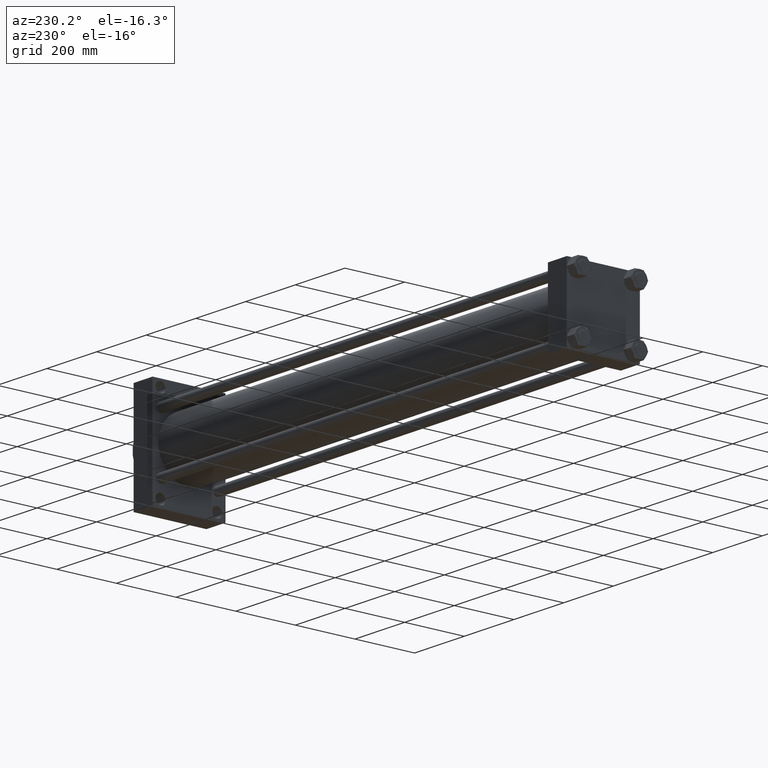
[diagram: clean part render]
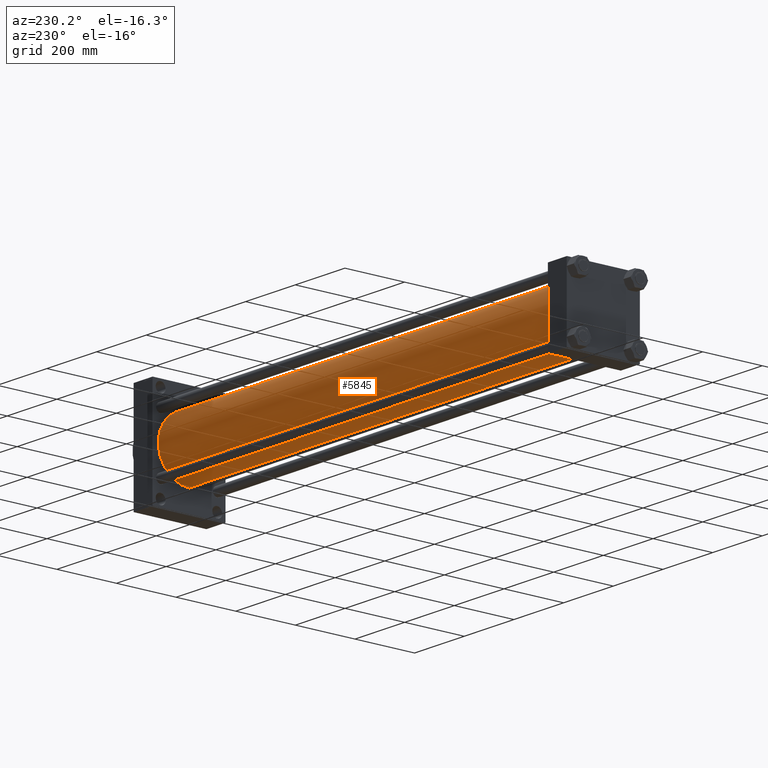
[diagram: same view with one face highlighted and labeled with its STEP entity id]
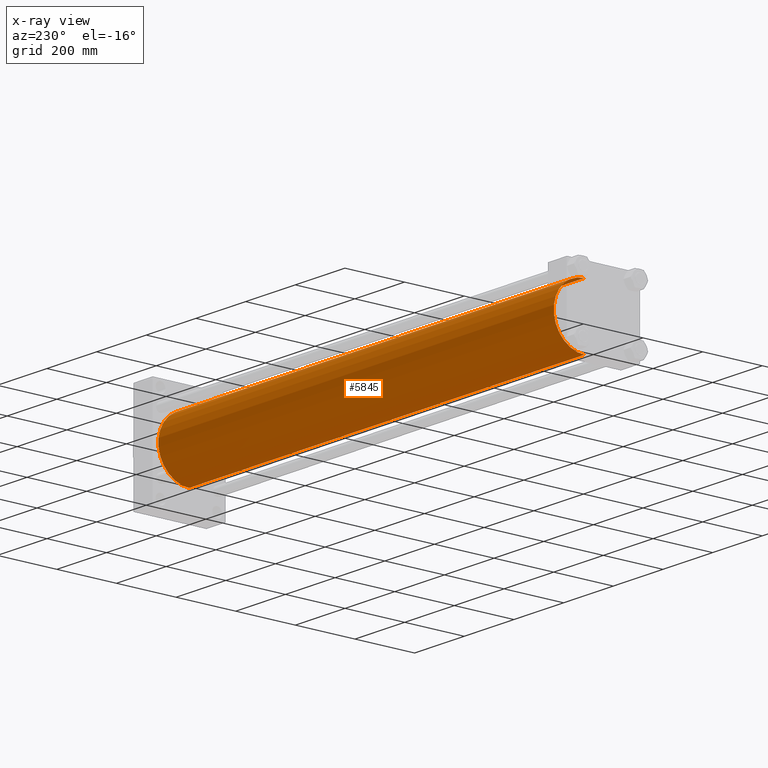
[diagram: x-ray of the same camera — body ghosted, the highlighted face saturated]
A machine part, auxiliary view. The second image highlights one B-rep face of the part: STEP entity #5845.
The next image is the same camera in x-ray: the body ghosted, the highlighted face saturated — about 0% of this face is hidden behind the body in this view.
In plain terms, the highlighted cylindrical surface (partial cylindrical patch) has radius 103 mm, axis along (-1, -0, -0).
Its self-contained STEP definition (entity closure, byte-faithful):
#1435 = EDGE_CURVE ( 'NONE', #34173, #3545, #4231, .T. ) ;
#3545 = VERTEX_POINT ( 'NONE', #31138 ) ;
#3569 = VECTOR ( 'NONE', #7838, 1000.000000000000000 ) ;
#4231 = LINE ( 'NONE', #30939, #3569 ) ;
#4477 = AXIS2_PLACEMENT_3D ( 'NONE', #18585, #7047, #29433 ) ;
#5845 = ADVANCED_FACE ( 'NONE', ( #27880 ), #42592, .T. ) ;
#7010 = CARTESIAN_POINT ( 'NONE',  ( 1668.000000000000227, -2.602085213965210642E-15, 103.0000000000000000 ) ) ;
#7047 = DIRECTION ( 'NONE',  ( 1.000000000000000000, 0.000000000000000000, 0.000000000000000000 ) ) ;
#7838 = DIRECTION ( 'NONE',  ( -1.000000000000000000, -0.000000000000000000, -0.000000000000000000 ) ) ;
#8028 = VERTEX_POINT ( 'NONE', #23329 ) ;
#8245 = DIRECTION ( 'NONE',  ( 1.000000000000000000, -0.000000000000000000, -0.000000000000000000 ) ) ;
#9236 = CARTESIAN_POINT ( 'NONE',  ( 76.00000000000007105, 1.001177681725252697E-14, -103.0000000000000000 ) ) ;
#9590 = DIRECTION ( 'NONE',  ( -1.000000000000000000, -0.000000000000000000, -0.000000000000000000 ) ) ;
#12693 = DIRECTION ( 'NONE',  ( -1.000000000000000000, -0.000000000000000000, -0.000000000000000000 ) ) ;
#13085 = EDGE_LOOP ( 'NONE', ( #27464, #45399, #29457, #41933 ) ) ;
#15463 = CARTESIAN_POINT ( 'NONE',  ( 76.00000000000007105, -2.602085213965210642E-15, 0.000000000000000000 ) ) ;
#18585 = CARTESIAN_POINT ( 'NONE',  ( 1668.000000000000227, -2.602085213965210642E-15, 0.000000000000000000 ) ) ;
#19837 = CIRCLE ( 'NONE', #4477, 103.0000000000000000 ) ;
#20711 = EDGE_CURVE ( 'NONE', #8028, #34173, #19837, .T. ) ;
#23329 = CARTESIAN_POINT ( 'NONE',  ( 1668.000000000000227, 1.001177681725252697E-14, -103.0000000000000000 ) ) ;
#24521 = DIRECTION ( 'NONE',  ( 0.000000000000000000, 0.000000000000000000, 1.000000000000000000 ) ) ;
#27464 = ORIENTED_EDGE ( 'NONE', *, *, #20711, .F. ) ;
#27880 = FACE_OUTER_BOUND ( 'NONE', #13085, .T. ) ;
#28551 = VECTOR ( 'NONE', #12693, 1000.000000000000000 ) ;
#28916 = VERTEX_POINT ( 'NONE', #9236 ) ;
#29433 = DIRECTION ( 'NONE',  ( 0.000000000000000000, 0.000000000000000000, -1.000000000000000000 ) ) ;
#29457 = ORIENTED_EDGE ( 'NONE', *, *, #44352, .T. ) ;
#29926 = DIRECTION ( 'NONE',  ( 0.000000000000000000, 0.000000000000000000, 1.000000000000000000 ) ) ;
#30939 = CARTESIAN_POINT ( 'NONE',  ( 1668.000000000000227, -2.602085213965210642E-15, 103.0000000000000000 ) ) ;
#31138 = CARTESIAN_POINT ( 'NONE',  ( 76.00000000000007105, -2.602085213965210642E-15, 103.0000000000000000 ) ) ;
#31718 = EDGE_CURVE ( 'NONE', #8028, #28916, #45223, .T. ) ;
#32228 = CARTESIAN_POINT ( 'NONE',  ( 1668.000000000000227, -2.602085213965210642E-15, 0.000000000000000000 ) ) ;
#34173 = VERTEX_POINT ( 'NONE', #7010 ) ;
#36766 = AXIS2_PLACEMENT_3D ( 'NONE', #32228, #9590, #24521 ) ;
#40368 = CIRCLE ( 'NONE', #44218, 103.0000000000000000 ) ;
#41933 = ORIENTED_EDGE ( 'NONE', *, *, #1435, .F. ) ;
#42592 = CYLINDRICAL_SURFACE ( 'NONE', #36766, 103.0000000000000000 ) ;
#44218 = AXIS2_PLACEMENT_3D ( 'NONE', #15463, #8245, #29926 ) ;
#44352 = EDGE_CURVE ( 'NONE', #28916, #3545, #40368, .T. ) ;
#45223 = LINE ( 'NONE', #45462, #28551 ) ;
#45399 = ORIENTED_EDGE ( 'NONE', *, *, #31718, .T. ) ;
#45462 = CARTESIAN_POINT ( 'NONE',  ( 1668.000000000000227, 1.001177681725252697E-14, -103.0000000000000000 ) ) ;